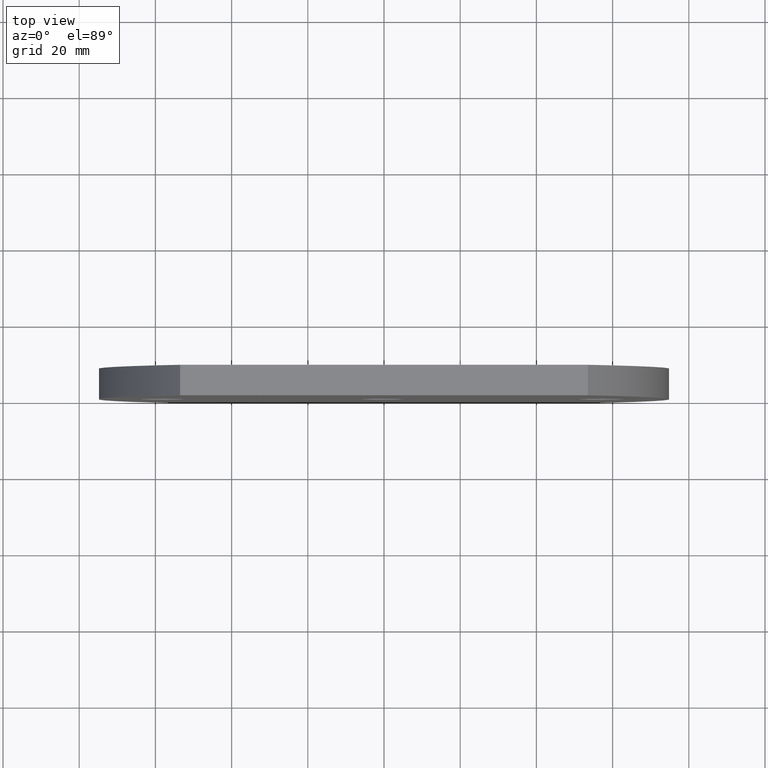
[diagram: clean part render]
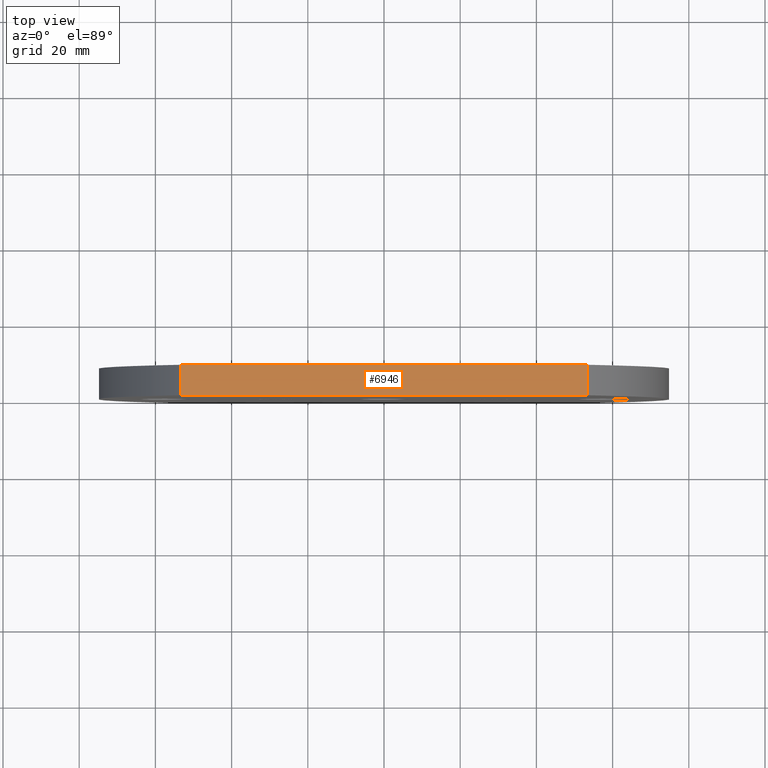
[diagram: same view with one face highlighted and labeled with its STEP entity id]
A machine part, top view. The second image highlights one B-rep face of the part: STEP entity #6946.
In plain terms, the highlighted planar face has unit normal (0, 0, -1).
Its self-contained STEP definition (entity closure, byte-faithful):
#215 = DIRECTION ( 'NONE',  ( -0.0000000000000000000, -1.000000000000000000, -0.0000000000000000000 ) ) ;
#518 = VERTEX_POINT ( 'NONE', #4637 ) ;
#629 = PLANE ( 'NONE',  #8482 ) ;
#1081 = VERTEX_POINT ( 'NONE', #10102 ) ;
#1159 = LINE ( 'NONE', #4425, #6917 ) ;
#1471 = ORIENTED_EDGE ( 'NONE', *, *, #2653, .F. ) ;
#1504 = DIRECTION ( 'NONE',  ( -1.000000000000000000, 0.0000000000000000000, -0.0000000000000000000 ) ) ;
#1958 = VECTOR ( 'NONE', #6127, 1000.000000000000000 ) ;
#2068 = CARTESIAN_POINT ( 'NONE',  ( 53.50000000000000700, 8.000000000000000000, 60.00000000000000000 ) ) ;
#2294 = VECTOR ( 'NONE', #215, 1000.000000000000000 ) ;
#2363 = EDGE_CURVE ( 'NONE', #10043, #518, #10052, .T. ) ;
#2653 = EDGE_CURVE ( 'NONE', #1081, #2768, #1159, .T. ) ;
#2768 = VERTEX_POINT ( 'NONE', #3091 ) ;
#2916 = DIRECTION ( 'NONE',  ( 1.000000000000000000, 0.0000000000000000000, 0.0000000000000000000 ) ) ;
#3091 = CARTESIAN_POINT ( 'NONE',  ( 53.50000000000000700, 8.000000000000000000, 60.00000000000000000 ) ) ;
#3261 = ORIENTED_EDGE ( 'NONE', *, *, #9549, .F. ) ;
#3456 = VECTOR ( 'NONE', #6482, 1000.000000000000000 ) ;
#3919 = EDGE_CURVE ( 'NONE', #1081, #10043, #9422, .T. ) ;
#4198 = CARTESIAN_POINT ( 'NONE',  ( -53.49999999999999300, 0.0000000000000000000, 60.00000000000000000 ) ) ;
#4380 = CARTESIAN_POINT ( 'NONE',  ( -53.49999999999999300, 8.000000000000000000, 60.00000000000000000 ) ) ;
#4425 = CARTESIAN_POINT ( 'NONE',  ( -53.49999999999999300, 8.000000000000000000, 60.00000000000000000 ) ) ;
#4635 = DIRECTION ( 'NONE',  ( 0.0000000000000000000, 0.0000000000000000000, -1.000000000000000000 ) ) ;
#4637 = CARTESIAN_POINT ( 'NONE',  ( 53.50000000000000700, 0.0000000000000000000, 60.00000000000000000 ) ) ;
#5707 = CARTESIAN_POINT ( 'NONE',  ( -53.49999999999999300, 0.0000000000000000000, 60.00000000000000000 ) ) ;
#6127 = DIRECTION ( 'NONE',  ( -0.0000000000000000000, -1.000000000000000000, -0.0000000000000000000 ) ) ;
#6234 = ORIENTED_EDGE ( 'NONE', *, *, #3919, .T. ) ;
#6482 = DIRECTION ( 'NONE',  ( 1.000000000000000000, 0.0000000000000000000, 0.0000000000000000000 ) ) ;
#6917 = VECTOR ( 'NONE', #2916, 1000.000000000000000 ) ;
#6946 = ADVANCED_FACE ( 'NONE', ( #7610 ), #629, .F. ) ;
#7229 = EDGE_LOOP ( 'NONE', ( #9766, #3261, #1471, #6234 ) ) ;
#7462 = LINE ( 'NONE', #2068, #1958 ) ;
#7610 = FACE_OUTER_BOUND ( 'NONE', #7229, .T. ) ;
#8482 = AXIS2_PLACEMENT_3D ( 'NONE', #9399, #4635, #1504 ) ;
#9399 = CARTESIAN_POINT ( 'NONE',  ( -53.49999999999999300, 8.000000000000000000, 60.00000000000000000 ) ) ;
#9422 = LINE ( 'NONE', #4380, #2294 ) ;
#9549 = EDGE_CURVE ( 'NONE', #2768, #518, #7462, .T. ) ;
#9766 = ORIENTED_EDGE ( 'NONE', *, *, #2363, .T. ) ;
#10043 = VERTEX_POINT ( 'NONE', #5707 ) ;
#10052 = LINE ( 'NONE', #4198, #3456 ) ;
#10102 = CARTESIAN_POINT ( 'NONE',  ( -53.49999999999999300, 8.000000000000000000, 60.00000000000000000 ) ) ;